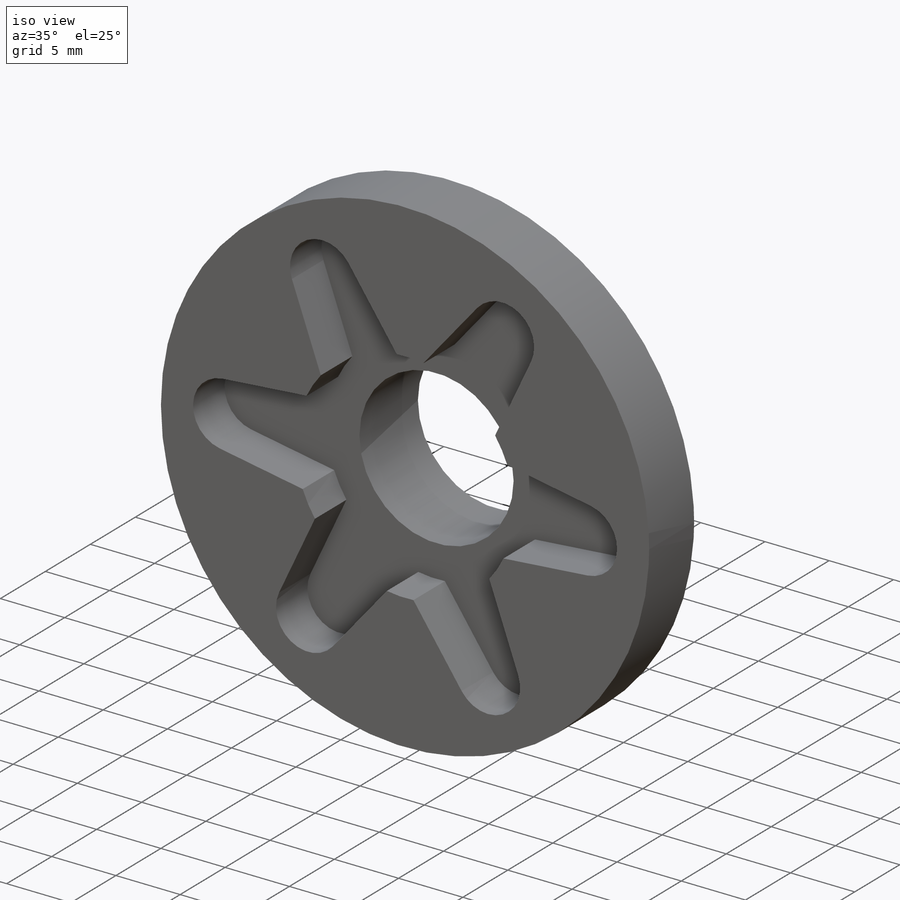
[diagram: iso view]
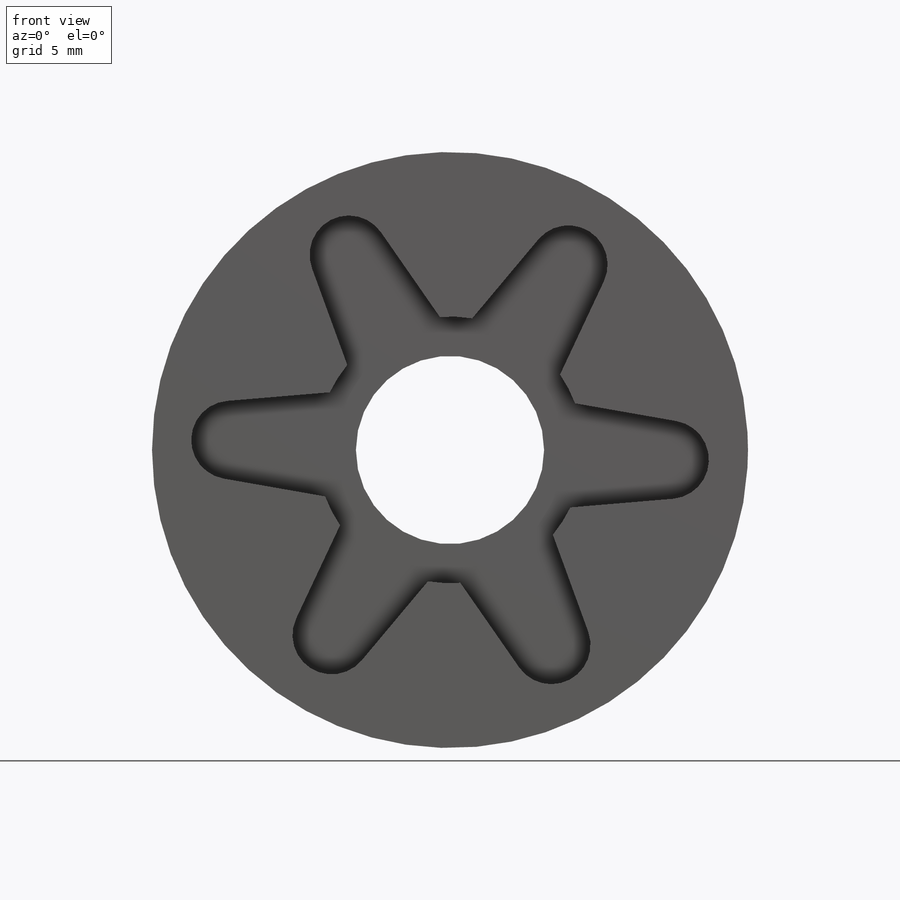
[diagram: front view]
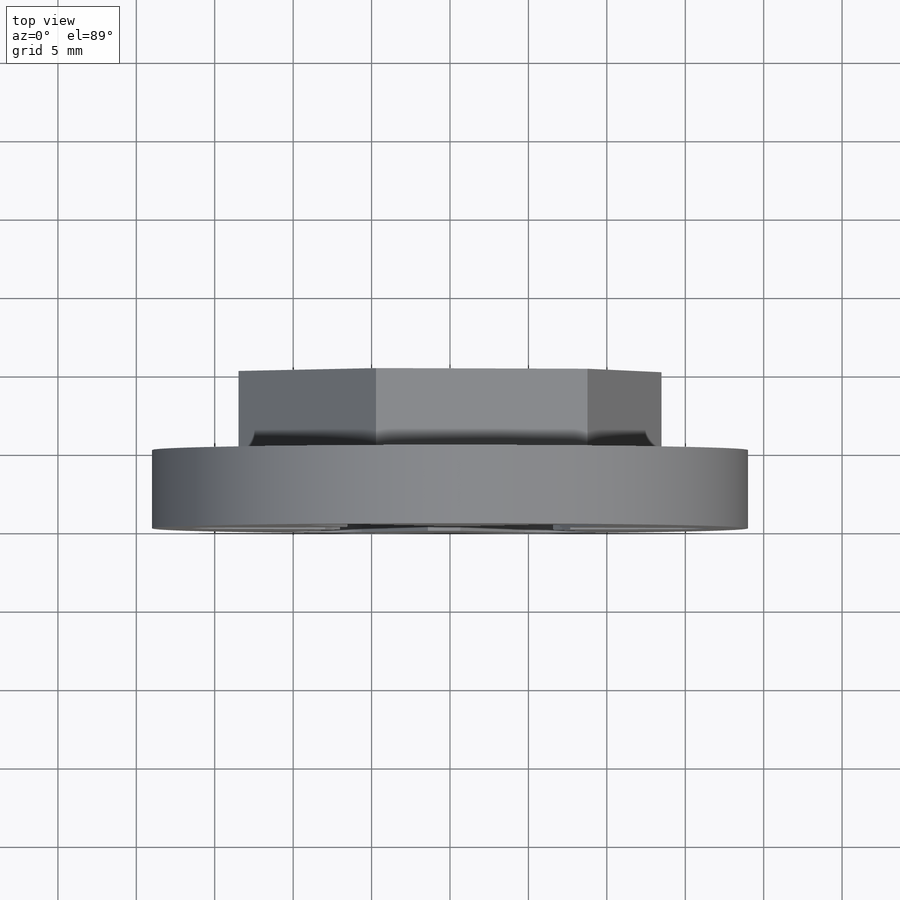
[diagram: top view]
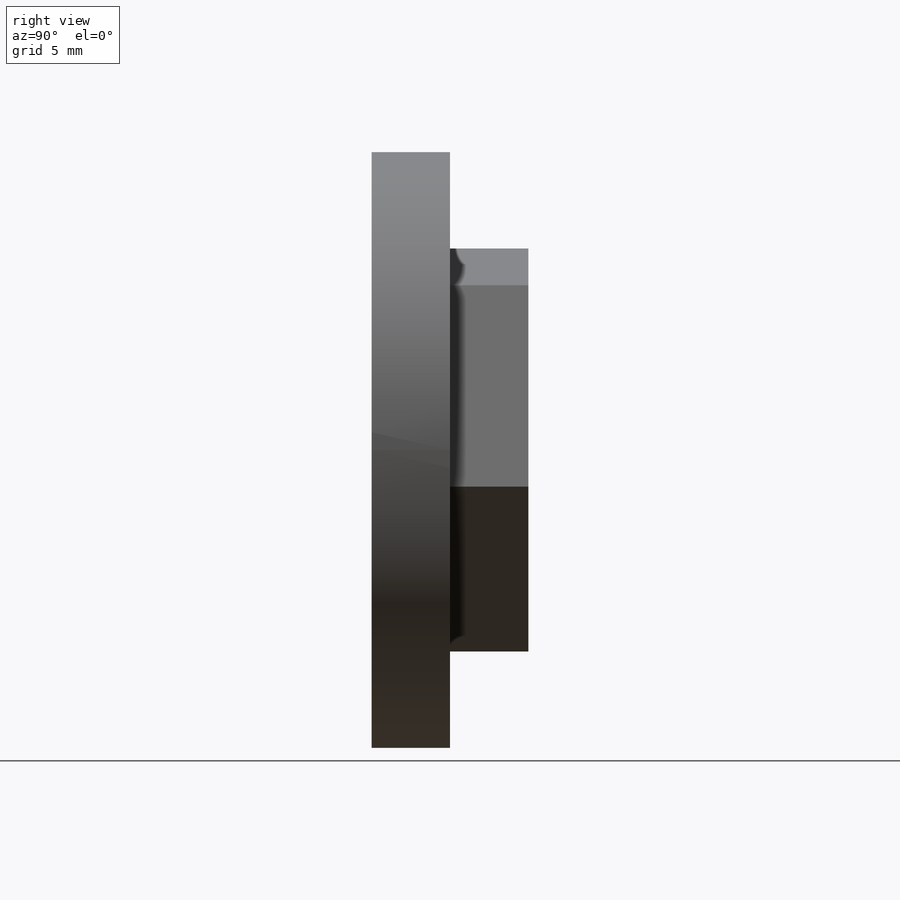
[diagram: right view]
SOLIDWORKS PART (.sldprt)
format: sldprt  version: not decoded by parser v0  size: 308,736 bytes
history: native  units: mm
features: sketch x4, extrude x2, cut_extrude x2, material x1 (+13 scaffold rows collapsed)
feature tree (22):
  scaffold x13  (default folders/planes/origin — collapsed)
  material  "Material <not specified>"
  sketch  "Sketch1"  dims[D2=40.0mm D4=23.7mm D1=0.0mm D3=0.0mm]
  extrude  "Boss-Extrude1"  Depth=5mm
  sketch  "Sketch2"  dims[D2=38.0mm D1=0.0mm]
  extrude  "Boss-Extrude2"  Depth=5mm
  sketch  "Sketch3"  dims[c1.D1=~18.067662mm c1.D2=8.6mm c1.D3=~29.373042mm c1.D4=5.0mm c1.D18=17.0mm c1.D5=5.0mm c2.D1=0.0mm c2.D3=0.0mm c2.D5=0.0mm c2.D6=7.5mm c2.D7=7.5mm c2.D8=6.5mm c2.D9=4.5mm c2.D10=9.0mm c2.D11=9.0mm c2.D12=9.0mm c3.D12=85.0deg c3.D13=9.0mm c4.D13=85.0deg c4.D5=2.5mm c4.D6=2.5mm c4.D7=4.0mm c4.D8=4.0mm c4.D9=13.7mm c5.D7=4.3mm c5.D8=0.0mm c5.D10=0.0mm c5.D11=~14.27423mm c6.D11=90.0deg c6.D12=0.0mm c6.D13=0.0mm c6.D14=~2.295719mm c7.D14=~65.998271deg c7.D12=13.9mm c7.D13=13.7mm c8.D14=4.3mm c8.D15=0.0mm c8.D16=0.0mm c8.D13=~3.421254mm c9.D13=90.0deg c9.D17=~3.999998mm c9.D9=0.0mm c10.D17=0.0mm c10.D18=~2.499639mm c11.D18=~122.951854deg c11.D9=0.0mm c11.D17=~0.578488mm c11.D5=2.5mm c12.D9=4.3mm c12.D13=4.3mm c12.D14=2.5mm c12.D15=4.3mm c12.D8=13.9mm c12.D6=4.3mm c12.D7=2.5mm c13.D8=13.9mm c13.D10=2.5mm c13.D11=4.3mm c13.D12=~13.788036mm c13.D15=4.3mm c14.D12=6.0]
  cut_extrude  "Cut-Extrude1"  Depth=3.5mm
  sketch  "Sketch4"  dims[c1.D1=~14.03324mm c1.D2=12.0mm c2.D1=0.0mm]
  cut_extrude  "Cut-Extrude2"  [1 undecoded]
decode coverage: 7 of 8 modeling features carry decoded parameters
note: ~ marks probable driven/reference dimensions
note: 1 parameter value undecoded
note: suppression state not decoded; provenance and decode notes live in map.json
